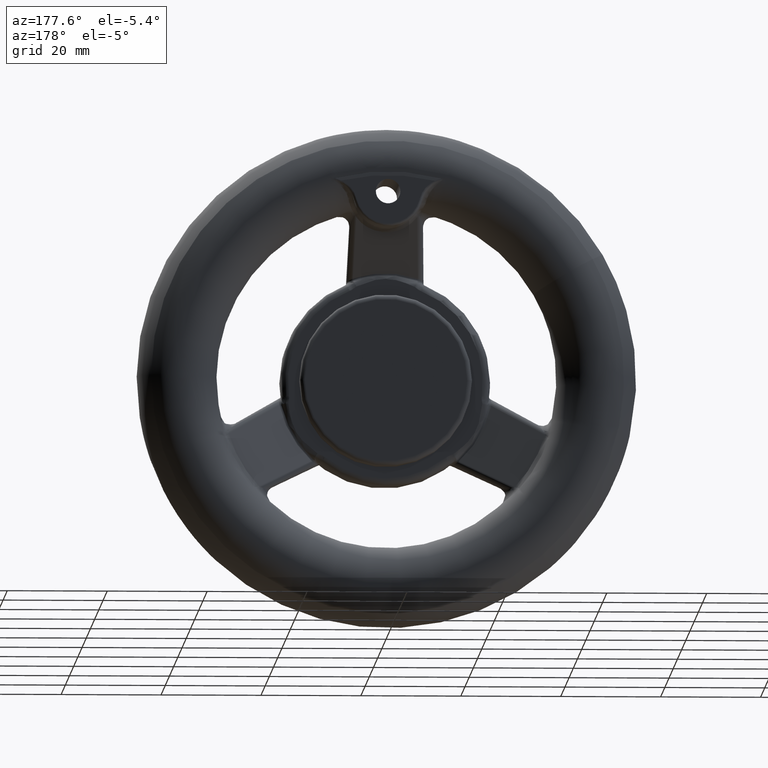
[diagram: clean part render]
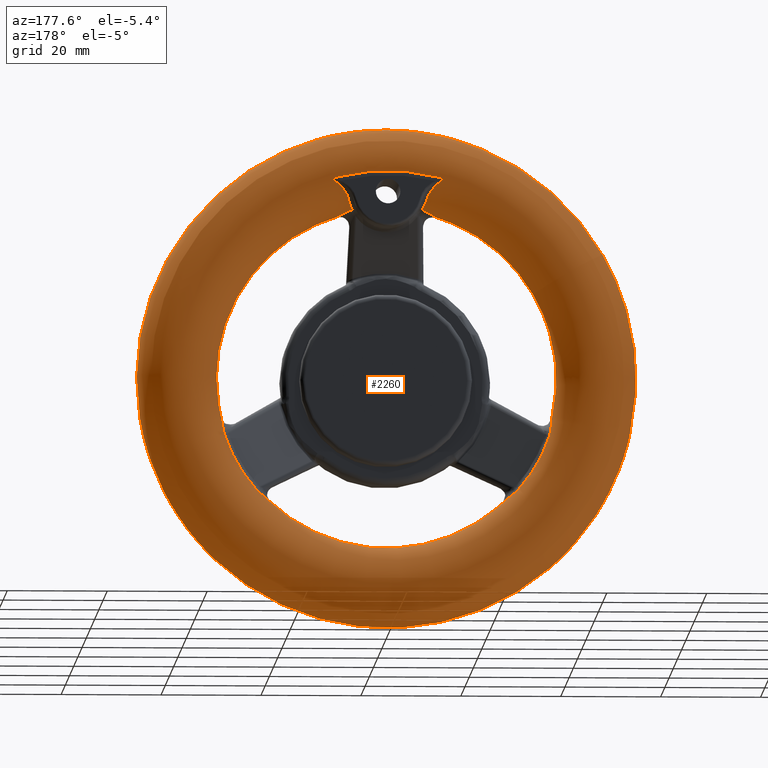
[diagram: same view with one face highlighted and labeled with its STEP entity id]
A machine part, auxiliary view. The second image highlights one B-rep face of the part: STEP entity #2260.
In plain terms, the highlighted toroidal blend (fillet) surface has major radius 42 mm and minor (blend) radius 8 mm.
Its self-contained STEP definition (entity closure, byte-faithful):
#108=B_SPLINE_CURVE_WITH_KNOTS('',3,(#3129,#3130,#3131,#3132),
 .UNSPECIFIED.,.F.,.F.,(4,4),(-1.11205868936124,0.00017987781664673),
 .UNSPECIFIED.);
#109=B_SPLINE_CURVE_WITH_KNOTS('',3,(#3133,#3134,#3135,#3136,#3137),
 .UNSPECIFIED.,.F.,.F.,(4,1,4),(0.00017987781664755,0.155557755867648,1.10627008978932),
 .UNSPECIFIED.);
#111=B_SPLINE_CURVE_WITH_KNOTS('',3,(#3161,#3162,#3163,#3164),
 .UNSPECIFIED.,.F.,.F.,(4,4),(-0.105075459467878,1.49404282551536E-14),
 .UNSPECIFIED.);
#112=B_SPLINE_CURVE_WITH_KNOTS('',3,(#3184,#3185,#3186,#3187),
 .UNSPECIFIED.,.F.,.F.,(4,4),(-0.105075458925029,0.),.UNSPECIFIED.);
#114=B_SPLINE_CURVE_WITH_KNOTS('',3,(#3241,#3242,#3243,#3244,#3245,#3246,
#3247,#3248,#3249,#3250,#3251,#3252),.UNSPECIFIED.,.F.,.F.,(4,1,1,1,1,1,
1,2,4),(-0.0294999964120699,-0.0280249965914664,-0.0265499967708629,-0.0235999971296559,
-0.0176999978472419,-0.0117999985648279,-0.00589999928241397,0.,0.000208481668944702),
 .UNSPECIFIED.);
#117=B_SPLINE_CURVE_WITH_KNOTS('',3,(#3346,#3347,#3348,#3349,#3350,#3351,
#3352,#3353,#3354,#3355,#3356,#3357),.UNSPECIFIED.,.F.,.F.,(4,2,1,1,1,1,
1,1,4),(-0.0297084823095931,-0.0294997530309695,-0.0235998024247756,-0.0176998518185817,
-0.0117999012123878,-0.00589995060619389,-0.00294997530309695,-0.00147498765154847,
0.),.UNSPECIFIED.);
#118=B_SPLINE_CURVE_WITH_KNOTS('',3,(#3382,#3383,#3384,#3385),
 .UNSPECIFIED.,.F.,.F.,(4,4),(-0.324867389448203,0.),.UNSPECIFIED.);
#121=B_SPLINE_CURVE_WITH_KNOTS('',3,(#3419,#3420,#3421,#3422),
 .UNSPECIFIED.,.F.,.F.,(4,4),(1.98314389351417E-16,0.145723780548421),
 .UNSPECIFIED.);
#123=B_SPLINE_CURVE_WITH_KNOTS('',3,(#3465,#3466,#3467,#3468,#3469,#3470,
#3471,#3472,#3473,#3474,#3475,#3476,#3477),.UNSPECIFIED.,.F.,.F.,(4,3,3,
3,4),(9.00101148506978,9.11299112772168,9.22497077037362,9.37427696057621,
9.52358315077266),.UNSPECIFIED.);
#125=B_SPLINE_CURVE_WITH_KNOTS('',3,(#3567,#3568,#3569,#3570,#3571,#3572,
#3573),.UNSPECIFIED.,.F.,.F.,(4,1,1,1,4),(-5.02304972807081,-4.87374523368268,
-4.72444073929455,-4.61246236850345,-4.50048399771234),.UNSPECIFIED.);
#127=B_SPLINE_CURVE_WITH_KNOTS('',3,(#3601,#3602,#3603,#3604),
 .UNSPECIFIED.,.F.,.F.,(4,4),(0.,0.145723772805698),.UNSPECIFIED.);
#128=B_SPLINE_CURVE_WITH_KNOTS('',3,(#3626,#3627,#3628,#3629),
 .UNSPECIFIED.,.F.,.F.,(4,4),(-0.324867389448202,0.),.UNSPECIFIED.);
#139=B_SPLINE_CURVE_WITH_KNOTS('',3,(#3868,#3869,#3870,#3871,#3872,#3873,
#3874,#3875,#3876),.UNSPECIFIED.,.F.,.F.,(4,1,1,1,1,1,4),(0.,0.0711721336624234,
0.142344267324847,0.177930334156058,0.21351640098727,0.355860668312117,
0.433416791087319),.UNSPECIFIED.);
#143=B_SPLINE_CURVE_WITH_KNOTS('',3,(#3952,#3953,#3954,#3955,#3956,#3957,
#3958),.UNSPECIFIED.,.F.,.F.,(4,1,1,1,4),(-0.433445344498483,-0.284688534649692,
-0.142344267324846,-0.071172133662423,0.),.UNSPECIFIED.);
#144=B_SPLINE_CURVE_WITH_KNOTS('',3,(#3962,#3963,#3964,#3965),
 .UNSPECIFIED.,.F.,.F.,(4,4),(-0.0641044802641502,0.),.UNSPECIFIED.);
#145=B_SPLINE_CURVE_WITH_KNOTS('',3,(#3967,#3968,#3969,#3970,#3971,#3972),
 .UNSPECIFIED.,.F.,.F.,(4,1,1,4),(0.,0.215920061076048,0.359866768460079,
0.503813475844111),.UNSPECIFIED.);
#146=B_SPLINE_CURVE_WITH_KNOTS('',3,(#3974,#3975,#3976,#3977),
 .UNSPECIFIED.,.F.,.F.,(4,4),(0.0581776192523774,0.125153708505333),
 .UNSPECIFIED.);
#147=B_SPLINE_CURVE_WITH_KNOTS('',3,(#3979,#3980,#3981,#3982),
 .UNSPECIFIED.,.F.,.F.,(4,4),(-0.44700126802991,0.),.UNSPECIFIED.);
#148=B_SPLINE_CURVE_WITH_KNOTS('',3,(#3984,#3985,#3986,#3987),
 .UNSPECIFIED.,.F.,.F.,(4,4),(-0.14572378054842,-4.2530484477613E-16),
 .UNSPECIFIED.);
#149=B_SPLINE_CURVE_WITH_KNOTS('',3,(#3989,#3990,#3991,#3992),
 .UNSPECIFIED.,.F.,.F.,(4,4),(-0.204546374153494,-6.9838081301515E-13),
 .UNSPECIFIED.);
#150=B_SPLINE_CURVE_WITH_KNOTS('',3,(#3994,#3995,#3996,#3997),
 .UNSPECIFIED.,.F.,.F.,(4,4),(0.,0.0843575794704116),.UNSPECIFIED.);
#151=B_SPLINE_CURVE_WITH_KNOTS('',3,(#3999,#4000,#4001,#4002,#4003,#4004,
#4005,#4006,#4007),.UNSPECIFIED.,.F.,.F.,(4,1,1,1,1,1,4),(0.,0.0314384252032729,
0.0471576378049094,0.0628768504065459,0.0943152756098188,0.157192126016365,
0.220068976422911),.UNSPECIFIED.);
#152=B_SPLINE_CURVE_WITH_KNOTS('',3,(#4011,#4012,#4013,#4014,#4015,#4016,
#4017,#4018,#4019,#4020,#4021,#4022),.UNSPECIFIED.,.F.,.F.,(4,1,1,1,1,1,
1,1,1,4),(0.,0.0628462693935953,0.094269404090393,0.125692538787191,0.14140410613559,
0.149259889809789,0.157115673483988,0.188538808180786,0.196394591854985,
0.219961942877584),.UNSPECIFIED.);
#153=B_SPLINE_CURVE_WITH_KNOTS('',3,(#4024,#4025,#4026,#4027),
 .UNSPECIFIED.,.F.,.F.,(4,4),(0.,0.0843575794555558),.UNSPECIFIED.);
#154=B_SPLINE_CURVE_WITH_KNOTS('',3,(#4029,#4030,#4031,#4032),
 .UNSPECIFIED.,.F.,.F.,(4,4),(-0.204546374167653,0.),.UNSPECIFIED.);
#155=B_SPLINE_CURVE_WITH_KNOTS('',3,(#4034,#4035,#4036,#4037),
 .UNSPECIFIED.,.F.,.F.,(4,4),(-0.14572378054836,0.),.UNSPECIFIED.);
#156=B_SPLINE_CURVE_WITH_KNOTS('',3,(#4039,#4040,#4041,#4042),
 .UNSPECIFIED.,.F.,.F.,(4,4),(-0.447001268029909,0.),.UNSPECIFIED.);
#157=B_SPLINE_CURVE_WITH_KNOTS('',3,(#4044,#4045,#4046,#4047),
 .UNSPECIFIED.,.F.,.F.,(4,4),(-0.125153708505299,-0.0581776192523448),
 .UNSPECIFIED.);
#158=B_SPLINE_CURVE_WITH_KNOTS('',3,(#4049,#4050,#4051,#4052,#4053,#4054,
#4055),.UNSPECIFIED.,.F.,.F.,(4,1,1,1,4),(-0.503813475829456,-0.395853445294572,
-0.287893414759689,-0.143946707379844,0.),.UNSPECIFIED.);
#159=B_SPLINE_CURVE_WITH_KNOTS('',3,(#4056,#4057,#4058,#4059),
 .UNSPECIFIED.,.F.,.F.,(4,4),(-0.0641044802641506,0.),.UNSPECIFIED.);
#160=B_SPLINE_CURVE_WITH_KNOTS('',3,(#4062,#4063,#4064,#4065,#4066,#4067),
 .UNSPECIFIED.,.F.,.F.,(4,2,4),(-0.0575729696720196,-0.0573695342148564,
0.),.UNSPECIFIED.);
#161=B_SPLINE_CURVE_WITH_KNOTS('',3,(#4069,#4070,#4071,#4072,#4073),
 .UNSPECIFIED.,.F.,.F.,(4,1,4),(-25.5208932710669,-24.874945102526,-24.4048725772288),
 .UNSPECIFIED.);
#162=B_SPLINE_CURVE_WITH_KNOTS('',3,(#4075,#4076,#4077,#4078,#4079,#4080),
 .UNSPECIFIED.,.F.,.F.,(4,2,4),(-0.057369534214831,0.,0.000203435457162376),
 .UNSPECIFIED.);
#163=B_SPLINE_CURVE_WITH_KNOTS('',3,(#4082,#4083,#4084,#4085),
 .UNSPECIFIED.,.F.,.F.,(4,4),(-0.12515371088495,0.),.UNSPECIFIED.);
#164=B_SPLINE_CURVE_WITH_KNOTS('',3,(#4087,#4088,#4089,#4090,#4091,#4092,
#4093),.UNSPECIFIED.,.F.,.F.,(4,1,1,1,4),(0.,0.107961096055346,0.215922192110692,
0.359870320184487,0.503818448258281),.UNSPECIFIED.);
#165=B_SPLINE_CURVE_WITH_KNOTS('',3,(#4095,#4096,#4097,#4098),
 .UNSPECIFIED.,.F.,.F.,(4,4),(-0.0641044802641587,0.),.UNSPECIFIED.);
#166=B_SPLINE_CURVE_WITH_KNOTS('',3,(#4100,#4101,#4102,#4103,#4104,#4105,
#4106,#4107),.UNSPECIFIED.,.F.,.F.,(4,1,1,1,1,4),(1.61313782085167E-15,
0.144149460067288,0.288298920134573,0.360373650168216,0.432448380201859,
0.504523110235502),.UNSPECIFIED.);
#167=B_SPLINE_CURVE_WITH_KNOTS('',3,(#4109,#4110,#4111,#4112,#4113,#4114,
#4115),.UNSPECIFIED.,.F.,.F.,(4,1,1,1,4),(-0.0641984082538768,-0.050441606485189,
-0.0458560058956263,-0.0366848047165011,0.),.UNSPECIFIED.);
#168=B_SPLINE_CURVE_WITH_KNOTS('',3,(#4117,#4118,#4119,#4120),
 .UNSPECIFIED.,.F.,.F.,(4,4),(-20.0694060049189,-18.9580455345997),
 .UNSPECIFIED.);
#169=B_SPLINE_CURVE_WITH_KNOTS('',3,(#4122,#4123,#4124,#4125,#4126,#4127,
#4128,#4129,#4130,#4131,#4132,#4133,#4134,#4135,#4136,#4137,#4138,#4139,
#4140,#4141,#4142,#4143),.UNSPECIFIED.,.F.,.F.,(4,1,1,1,1,1,1,1,1,1,1,1,
1,1,1,1,1,1,1,4),(-0.0641885585997634,-0.0458461530957626,-0.0412605517197624,
-0.0366749503437622,-0.0275037475917619,-0.0244466800077617,-0.0183325448397615,
-0.0122184096717612,-0.00916134208776105,-0.008014941743761,-0.00686854139976095,
-0.00457574071176085,-0.00228294002376075,-0.00170973985176073,-0.0011365396797607,
-0.000563339507760679,-0.000276739421760667,-0.000133439378760661,-6.17893572606576E-5,
9.86066423934549E-6),.UNSPECIFIED.);
#170=B_SPLINE_CURVE_WITH_KNOTS('',3,(#4145,#4146,#4147,#4148,#4149,#4150,
#4151,#4152),.UNSPECIFIED.,.F.,.F.,(4,1,1,1,1,4),(0.,0.0720749658790205,
0.144149931758041,0.216224897637062,0.360374829395103,0.504524761153144),
 .UNSPECIFIED.);
#171=B_SPLINE_CURVE_WITH_KNOTS('',3,(#4154,#4155,#4156,#4157),
 .UNSPECIFIED.,.F.,.F.,(4,4),(-0.0641044802641476,0.),.UNSPECIFIED.);
#172=B_SPLINE_CURVE_WITH_KNOTS('',3,(#4159,#4160,#4161,#4162,#4163,#4164),
 .UNSPECIFIED.,.F.,.F.,(4,1,1,4),(0.,0.215919860424791,0.359866434041318,
0.503813007657846),.UNSPECIFIED.);
#173=B_SPLINE_CURVE_WITH_KNOTS('',3,(#4165,#4166,#4167,#4168),
 .UNSPECIFIED.,.F.,.F.,(4,4),(0.,0.125153708205909),.UNSPECIFIED.);
#174=B_SPLINE_CURVE_WITH_KNOTS('',3,(#4171,#4172,#4173,#4174,#4175,#4176),
 .UNSPECIFIED.,.F.,.F.,(4,2,4),(-0.0573695342148252,0.,0.000203435457164769),
 .UNSPECIFIED.);
#175=B_SPLINE_CURVE_WITH_KNOTS('',3,(#4178,#4179,#4180,#4181),
 .UNSPECIFIED.,.F.,.F.,(4,4),(-0.1251537082065,0.),.UNSPECIFIED.);
#176=B_SPLINE_CURVE_WITH_KNOTS('',3,(#4183,#4184,#4185,#4186,#4187,#4188),
 .UNSPECIFIED.,.F.,.F.,(4,1,1,4),(-0.503813007657846,-0.359866434041319,
-0.215919860424791,0.),.UNSPECIFIED.);
#177=B_SPLINE_CURVE_WITH_KNOTS('',3,(#4190,#4191,#4192,#4193),
 .UNSPECIFIED.,.F.,.F.,(4,4),(-0.0641044802641477,0.),.UNSPECIFIED.);
#178=B_SPLINE_CURVE_WITH_KNOTS('',3,(#4195,#4196,#4197,#4198,#4199,#4200,
#4201,#4202),.UNSPECIFIED.,.F.,.F.,(4,1,1,1,1,4),(-0.504524761157834,-0.360374829398453,
-0.216224897639072,-0.144149931759381,-0.0720749658796906,0.),
 .UNSPECIFIED.);
#179=B_SPLINE_CURVE_WITH_KNOTS('',3,(#4204,#4205,#4206,#4207,#4208,#4209,
#4210),.UNSPECIFIED.,.F.,.F.,(4,1,1,1,4),(-0.0641984082537275,-0.0619056079589515,
-0.0550272070746236,-0.0366848047164157,0.),.UNSPECIFIED.);
#180=B_SPLINE_CURVE_WITH_KNOTS('',3,(#4212,#4213,#4214,#4215),
 .UNSPECIFIED.,.F.,.F.,(4,4),(-20.0694060049189,-18.9580455345997),
 .UNSPECIFIED.);
#181=B_SPLINE_CURVE_WITH_KNOTS('',3,(#4217,#4218,#4219,#4220,#4221,#4222,
#4223,#4224),.UNSPECIFIED.,.F.,.F.,(4,1,1,1,1,4),(-0.0641885586606368,-0.0366749504048936,
-0.0183325449010648,-0.00916134214915041,-0.00686854146117181,9.86060276399343E-6),
 .UNSPECIFIED.);
#182=B_SPLINE_CURVE_WITH_KNOTS('',3,(#4226,#4227,#4228,#4229,#4230,#4231,
#4232,#4233),.UNSPECIFIED.,.F.,.F.,(4,1,1,1,1,4),(0.,0.0720742497162352,
0.14414849943247,0.216222749148706,0.360371248581176,0.504519748013646),
 .UNSPECIFIED.);
#183=B_SPLINE_CURVE_WITH_KNOTS('',3,(#4235,#4236,#4237,#4238),
 .UNSPECIFIED.,.F.,.F.,(4,4),(-0.0641044802641576,0.),.UNSPECIFIED.);
#184=B_SPLINE_CURVE_WITH_KNOTS('',3,(#4240,#4241,#4242,#4243,#4244,#4245),
 .UNSPECIFIED.,.F.,.F.,(4,1,1,4),(0.,0.215920768120389,0.359867946867315,
0.503815125614241),.UNSPECIFIED.);
#185=B_SPLINE_CURVE_WITH_KNOTS('',3,(#4247,#4248,#4249,#4250),
 .UNSPECIFIED.,.F.,.F.,(4,4),(0.,0.125153710884984),.UNSPECIFIED.);
#186=B_SPLINE_CURVE_WITH_KNOTS('',3,(#4252,#4253,#4254,#4255,#4256,#4257),
 .UNSPECIFIED.,.F.,.F.,(4,2,4),(-0.057572969671972,-0.0573695342148082,
0.),.UNSPECIFIED.);
#187=B_SPLINE_CURVE_WITH_KNOTS('',3,(#4258,#4259,#4260,#4261,#4262),
 .UNSPECIFIED.,.F.,.F.,(4,1,4),(-25.5208932710649,-24.874945102526,-24.4048725772297),
 .UNSPECIFIED.);
#397=TOROIDAL_SURFACE('',#2432,42.,8.);
#418=FACE_BOUND('',#649,.T.);
#419=FACE_BOUND('',#650,.T.);
#420=FACE_BOUND('',#651,.T.);
#649=EDGE_LOOP('',(#1601,#1602,#1603,#1604,#1605,#1606,#1607,#1608,#1609,
#1610,#1611,#1612,#1613,#1614,#1615,#1616,#1617,#1618,#1619,#1620,#1621,
#1622,#1623,#1624,#1625,#1626,#1627,#1628,#1629,#1630,#1631));
#650=EDGE_LOOP('',(#1632,#1633,#1634,#1635,#1636,#1637,#1638,#1639,#1640,
#1641,#1642,#1643,#1644,#1645));
#651=EDGE_LOOP('',(#1646,#1647,#1648,#1649,#1650,#1651,#1652,#1653,#1654,
#1655,#1656,#1657,#1658,#1659));
#817=CIRCLE('',#2433,41.1239585600274);
#936=VERTEX_POINT('',#3121);
#939=VERTEX_POINT('',#3126);
#940=VERTEX_POINT('',#3128);
#941=VERTEX_POINT('',#3154);
#944=VERTEX_POINT('',#3182);
#945=VERTEX_POINT('',#3240);
#946=VERTEX_POINT('',#3323);
#948=VERTEX_POINT('',#3379);
#949=VERTEX_POINT('',#3381);
#951=VERTEX_POINT('',#3412);
#957=VERTEX_POINT('',#3557);
#959=VERTEX_POINT('',#3594);
#961=VERTEX_POINT('',#3625);
#968=VERTEX_POINT('',#3866);
#974=VERTEX_POINT('',#3951);
#975=VERTEX_POINT('',#3961);
#976=VERTEX_POINT('',#3966);
#977=VERTEX_POINT('',#3973);
#978=VERTEX_POINT('',#3978);
#979=VERTEX_POINT('',#3983);
#980=VERTEX_POINT('',#3988);
#981=VERTEX_POINT('',#3993);
#982=VERTEX_POINT('',#3998);
#983=VERTEX_POINT('',#4008);
#984=VERTEX_POINT('',#4010);
#985=VERTEX_POINT('',#4023);
#986=VERTEX_POINT('',#4028);
#987=VERTEX_POINT('',#4033);
#988=VERTEX_POINT('',#4038);
#989=VERTEX_POINT('',#4043);
#990=VERTEX_POINT('',#4048);
#991=VERTEX_POINT('',#4060);
#992=VERTEX_POINT('',#4061);
#993=VERTEX_POINT('',#4068);
#994=VERTEX_POINT('',#4074);
#995=VERTEX_POINT('',#4081);
#996=VERTEX_POINT('',#4086);
#997=VERTEX_POINT('',#4094);
#998=VERTEX_POINT('',#4099);
#999=VERTEX_POINT('',#4108);
#1000=VERTEX_POINT('',#4116);
#1001=VERTEX_POINT('',#4121);
#1002=VERTEX_POINT('',#4144);
#1003=VERTEX_POINT('',#4153);
#1004=VERTEX_POINT('',#4158);
#1005=VERTEX_POINT('',#4169);
#1006=VERTEX_POINT('',#4170);
#1007=VERTEX_POINT('',#4177);
#1008=VERTEX_POINT('',#4182);
#1009=VERTEX_POINT('',#4189);
#1010=VERTEX_POINT('',#4194);
#1011=VERTEX_POINT('',#4203);
#1012=VERTEX_POINT('',#4211);
#1013=VERTEX_POINT('',#4216);
#1014=VERTEX_POINT('',#4225);
#1015=VERTEX_POINT('',#4234);
#1016=VERTEX_POINT('',#4239);
#1017=VERTEX_POINT('',#4246);
#1018=VERTEX_POINT('',#4251);
#1152=EDGE_CURVE('',#939,#940,#108,.T.);
#1153=EDGE_CURVE('',#940,#936,#109,.T.);
#1156=EDGE_CURVE('',#936,#941,#111,.T.);
#1158=EDGE_CURVE('',#944,#939,#112,.T.);
#1160=EDGE_CURVE('',#941,#945,#114,.T.);
#1163=EDGE_CURVE('',#946,#944,#117,.T.);
#1165=EDGE_CURVE('',#948,#949,#118,.T.);
#1170=EDGE_CURVE('',#949,#951,#121,.T.);
#1172=EDGE_CURVE('',#951,#946,#123,.T.);
#1179=EDGE_CURVE('',#945,#957,#125,.T.);
#1182=EDGE_CURVE('',#957,#959,#127,.T.);
#1183=EDGE_CURVE('',#959,#961,#128,.T.);
#1198=EDGE_CURVE('',#968,#948,#139,.T.);
#1207=EDGE_CURVE('',#961,#974,#143,.T.);
#1209=EDGE_CURVE('',#975,#968,#144,.T.);
#1210=EDGE_CURVE('',#976,#975,#145,.T.);
#1211=EDGE_CURVE('',#977,#976,#146,.T.);
#1212=EDGE_CURVE('',#978,#977,#147,.T.);
#1213=EDGE_CURVE('',#979,#978,#148,.T.);
#1214=EDGE_CURVE('',#980,#979,#149,.T.);
#1215=EDGE_CURVE('',#981,#980,#150,.T.);
#1216=EDGE_CURVE('',#982,#981,#151,.T.);
#1217=EDGE_CURVE('',#983,#982,#817,.T.);
#1218=EDGE_CURVE('',#984,#983,#152,.T.);
#1219=EDGE_CURVE('',#985,#984,#153,.T.);
#1220=EDGE_CURVE('',#986,#985,#154,.T.);
#1221=EDGE_CURVE('',#987,#986,#155,.T.);
#1222=EDGE_CURVE('',#988,#987,#156,.T.);
#1223=EDGE_CURVE('',#989,#988,#157,.T.);
#1224=EDGE_CURVE('',#990,#989,#158,.T.);
#1225=EDGE_CURVE('',#974,#990,#159,.T.);
#1226=EDGE_CURVE('',#991,#992,#160,.T.);
#1227=EDGE_CURVE('',#993,#991,#161,.T.);
#1228=EDGE_CURVE('',#994,#993,#162,.T.);
#1229=EDGE_CURVE('',#995,#994,#163,.T.);
#1230=EDGE_CURVE('',#996,#995,#164,.T.);
#1231=EDGE_CURVE('',#997,#996,#165,.T.);
#1232=EDGE_CURVE('',#998,#997,#166,.T.);
#1233=EDGE_CURVE('',#999,#998,#167,.T.);
#1234=EDGE_CURVE('',#1000,#999,#168,.T.);
#1235=EDGE_CURVE('',#1001,#1000,#169,.T.);
#1236=EDGE_CURVE('',#1002,#1001,#170,.T.);
#1237=EDGE_CURVE('',#1003,#1002,#171,.T.);
#1238=EDGE_CURVE('',#1004,#1003,#172,.T.);
#1239=EDGE_CURVE('',#992,#1004,#173,.T.);
#1240=EDGE_CURVE('',#1005,#1006,#174,.T.);
#1241=EDGE_CURVE('',#1007,#1005,#175,.T.);
#1242=EDGE_CURVE('',#1008,#1007,#176,.T.);
#1243=EDGE_CURVE('',#1009,#1008,#177,.T.);
#1244=EDGE_CURVE('',#1010,#1009,#178,.T.);
#1245=EDGE_CURVE('',#1011,#1010,#179,.T.);
#1246=EDGE_CURVE('',#1012,#1011,#180,.T.);
#1247=EDGE_CURVE('',#1013,#1012,#181,.T.);
#1248=EDGE_CURVE('',#1014,#1013,#182,.T.);
#1249=EDGE_CURVE('',#1015,#1014,#183,.T.);
#1250=EDGE_CURVE('',#1016,#1015,#184,.T.);
#1251=EDGE_CURVE('',#1017,#1016,#185,.T.);
#1252=EDGE_CURVE('',#1018,#1017,#186,.T.);
#1253=EDGE_CURVE('',#1006,#1018,#187,.T.);
#1601=ORIENTED_EDGE('',*,*,#1163,.F.);
#1602=ORIENTED_EDGE('',*,*,#1172,.F.);
#1603=ORIENTED_EDGE('',*,*,#1170,.F.);
#1604=ORIENTED_EDGE('',*,*,#1165,.F.);
#1605=ORIENTED_EDGE('',*,*,#1198,.F.);
#1606=ORIENTED_EDGE('',*,*,#1209,.F.);
#1607=ORIENTED_EDGE('',*,*,#1210,.F.);
#1608=ORIENTED_EDGE('',*,*,#1211,.F.);
#1609=ORIENTED_EDGE('',*,*,#1212,.F.);
#1610=ORIENTED_EDGE('',*,*,#1213,.F.);
#1611=ORIENTED_EDGE('',*,*,#1214,.F.);
#1612=ORIENTED_EDGE('',*,*,#1215,.F.);
#1613=ORIENTED_EDGE('',*,*,#1216,.F.);
#1614=ORIENTED_EDGE('',*,*,#1217,.F.);
#1615=ORIENTED_EDGE('',*,*,#1218,.F.);
#1616=ORIENTED_EDGE('',*,*,#1219,.F.);
#1617=ORIENTED_EDGE('',*,*,#1220,.F.);
#1618=ORIENTED_EDGE('',*,*,#1221,.F.);
#1619=ORIENTED_EDGE('',*,*,#1222,.F.);
#1620=ORIENTED_EDGE('',*,*,#1223,.F.);
#1621=ORIENTED_EDGE('',*,*,#1224,.F.);
#1622=ORIENTED_EDGE('',*,*,#1225,.F.);
#1623=ORIENTED_EDGE('',*,*,#1207,.F.);
#1624=ORIENTED_EDGE('',*,*,#1183,.F.);
#1625=ORIENTED_EDGE('',*,*,#1182,.F.);
#1626=ORIENTED_EDGE('',*,*,#1179,.F.);
#1627=ORIENTED_EDGE('',*,*,#1160,.F.);
#1628=ORIENTED_EDGE('',*,*,#1156,.F.);
#1629=ORIENTED_EDGE('',*,*,#1153,.F.);
#1630=ORIENTED_EDGE('',*,*,#1152,.F.);
#1631=ORIENTED_EDGE('',*,*,#1158,.F.);
#1632=ORIENTED_EDGE('',*,*,#1226,.F.);
#1633=ORIENTED_EDGE('',*,*,#1227,.F.);
#1634=ORIENTED_EDGE('',*,*,#1228,.F.);
#1635=ORIENTED_EDGE('',*,*,#1229,.F.);
#1636=ORIENTED_EDGE('',*,*,#1230,.F.);
#1637=ORIENTED_EDGE('',*,*,#1231,.F.);
#1638=ORIENTED_EDGE('',*,*,#1232,.F.);
#1639=ORIENTED_EDGE('',*,*,#1233,.F.);
#1640=ORIENTED_EDGE('',*,*,#1234,.F.);
#1641=ORIENTED_EDGE('',*,*,#1235,.F.);
#1642=ORIENTED_EDGE('',*,*,#1236,.F.);
#1643=ORIENTED_EDGE('',*,*,#1237,.F.);
#1644=ORIENTED_EDGE('',*,*,#1238,.F.);
#1645=ORIENTED_EDGE('',*,*,#1239,.F.);
#1646=ORIENTED_EDGE('',*,*,#1240,.F.);
#1647=ORIENTED_EDGE('',*,*,#1241,.F.);
#1648=ORIENTED_EDGE('',*,*,#1242,.F.);
#1649=ORIENTED_EDGE('',*,*,#1243,.F.);
#1650=ORIENTED_EDGE('',*,*,#1244,.F.);
#1651=ORIENTED_EDGE('',*,*,#1245,.F.);
#1652=ORIENTED_EDGE('',*,*,#1246,.F.);
#1653=ORIENTED_EDGE('',*,*,#1247,.F.);
#1654=ORIENTED_EDGE('',*,*,#1248,.F.);
#1655=ORIENTED_EDGE('',*,*,#1249,.F.);
#1656=ORIENTED_EDGE('',*,*,#1250,.F.);
#1657=ORIENTED_EDGE('',*,*,#1251,.F.);
#1658=ORIENTED_EDGE('',*,*,#1252,.F.);
#1659=ORIENTED_EDGE('',*,*,#1253,.F.);
#2260=ADVANCED_FACE('',(#418,#419,#420),#397,.T.);
#2432=AXIS2_PLACEMENT_3D('',#3960,#2688,#2689);
#2433=AXIS2_PLACEMENT_3D('',#4009,#2690,#2691);
#2688=DIRECTION('center_axis',(0.,1.,0.));
#2689=DIRECTION('ref_axis',(0.,0.,1.));
#2690=DIRECTION('center_axis',(0.,1.,0.));
#2691=DIRECTION('ref_axis',(-1.62471662140267E-16,0.,1.));
#3121=CARTESIAN_POINT('',(-11.054794354252,-5.98570922037629,40.0233820607429));
#3126=CARTESIAN_POINT('',(11.054794354252,-5.98570922037629,40.0233820607429));
#3128=CARTESIAN_POINT('',(3.12210147871122E-14,-5.98570922037629,41.5220373993739));
#3129=CARTESIAN_POINT('Ctrl Pts',(11.054794354252,-5.98570922037629,40.0233820607429));
#3130=CARTESIAN_POINT('Ctrl Pts',(7.45814404245277,-5.98570922037629,41.0168070916599));
#3131=CARTESIAN_POINT('Ctrl Pts',(3.73740943256129,-5.98570922037629,41.5226293672828));
#3132=CARTESIAN_POINT('Ctrl Pts',(-7.81405495864362E-11,-5.98570922037629,
41.522264189446));
#3133=CARTESIAN_POINT('Ctrl Pts',(-7.81498477042675E-11,-5.98570922037629,
41.522264189446));
#3134=CARTESIAN_POINT('Ctrl Pts',(-0.522109882065755,-5.98570922037629,
41.5222131747095));
#3135=CARTESIAN_POINT('Ctrl Pts',(-4.24117581806594,-5.98570922037629,41.4515273682912));
#3136=CARTESIAN_POINT('Ctrl Pts',(-7.96189324068181,-5.98570922037629,40.8776673312047));
#3137=CARTESIAN_POINT('Ctrl Pts',(-11.054794354252,-5.98570922037629,40.0233820607429));
#3154=CARTESIAN_POINT('',(-11.8040982586702,-5.95673671440128,39.4405975153765));
#3161=CARTESIAN_POINT('Ctrl Pts',(-11.054794354252,-5.98570922037629,40.0233820607429));
#3162=CARTESIAN_POINT('Ctrl Pts',(-11.3938679143902,-5.98570922037628,39.9297270949381));
#3163=CARTESIAN_POINT('Ctrl Pts',(-11.7292097653912,-5.98078498171343,39.7034000918977));
#3164=CARTESIAN_POINT('Ctrl Pts',(-11.8040982586702,-5.95673671440127,39.4405975153764));
#3182=CARTESIAN_POINT('',(11.8040982586702,-5.95673671440129,39.4405975153765));
#3184=CARTESIAN_POINT('Ctrl Pts',(11.8040982586702,-5.95673671440128,39.4405975153765));
#3185=CARTESIAN_POINT('Ctrl Pts',(11.7292097657782,-5.98078498158912,39.7034000905393));
#3186=CARTESIAN_POINT('Ctrl Pts',(11.3938679126385,-5.98570922037628,39.9297270954219));
#3187=CARTESIAN_POINT('Ctrl Pts',(11.054794354252,-5.98570922037629,40.0233820607429));
#3240=CARTESIAN_POINT('',(-11.9303932519007,-5.93725393319014,39.2258297152863));
#3241=CARTESIAN_POINT('Ctrl Pts',(-11.8040982586702,-5.95673671440128,39.4405975153765));
#3242=CARTESIAN_POINT('Ctrl Pts',(-11.8051495080743,-5.95639913614894,39.4369084165594));
#3243=CARTESIAN_POINT('Ctrl Pts',(-11.807677079618,-5.95573419810031,39.429544180922));
#3244=CARTESIAN_POINT('Ctrl Pts',(-11.8133973470783,-5.9544161644559,39.4148793099553));
#3245=CARTESIAN_POINT('Ctrl Pts',(-11.8248130809754,-5.95212781459619,39.3893375348989));
#3246=CARTESIAN_POINT('Ctrl Pts',(-11.8438639967729,-5.94888178989594,39.3532057785797));
#3247=CARTESIAN_POINT('Ctrl Pts',(-11.8697687763787,-5.94502225464461,39.3105881579497));
#3248=CARTESIAN_POINT('Ctrl Pts',(-11.8982678352397,-5.94118306990689,39.2685343186556));
#3249=CARTESIAN_POINT('Ctrl Pts',(-11.9187271718612,-5.93864739172649,39.2409497110284));
#3250=CARTESIAN_POINT('Ctrl Pts',(-11.9296467065352,-5.93734294671039,39.2267954420061));
#3251=CARTESIAN_POINT('Ctrl Pts',(-11.9300197697475,-5.93729843584731,39.2263125138303));
#3252=CARTESIAN_POINT('Ctrl Pts',(-11.9303932519831,-5.93725393319378,39.2258297152914));
#3323=CARTESIAN_POINT('',(11.9303932519228,-5.93725393319112,39.2258297152876));
#3346=CARTESIAN_POINT('Ctrl Pts',(11.9303932519831,-5.93725393319378,39.2258297152914));
#3347=CARTESIAN_POINT('Ctrl Pts',(11.9300193261823,-5.93729848870059,39.2263130872232));
#3348=CARTESIAN_POINT('Ctrl Pts',(11.9296458215004,-5.93734305238459,39.2267965882934));
#3349=CARTESIAN_POINT('Ctrl Pts',(11.9187259135199,-5.93864754148235,39.2409513503263));
#3350=CARTESIAN_POINT('Ctrl Pts',(11.8982679941093,-5.94118292659262,39.2685328026104));
#3351=CARTESIAN_POINT('Ctrl Pts',(11.8697672051636,-5.94502241520218,39.3105900818501));
#3352=CARTESIAN_POINT('Ctrl Pts',(11.8438644420057,-5.94888173246624,39.3532051179261));
#3353=CARTESIAN_POINT('Ctrl Pts',(11.8248149861788,-5.95212808928281,39.3893396195851));
#3354=CARTESIAN_POINT('Ctrl Pts',(11.8133984007864,-5.95441620442101,39.4148793995813));
#3355=CARTESIAN_POINT('Ctrl Pts',(11.8076807152128,-5.95573434846762,39.4295445966913));
#3356=CARTESIAN_POINT('Ctrl Pts',(11.8051494994012,-5.95639913893403,39.4369084469953));
#3357=CARTESIAN_POINT('Ctrl Pts',(11.8040982586702,-5.95673671440128,39.4405975153765));
#3379=CARTESIAN_POINT('',(7.23566926346403,-1.59345688751037,34.0931126237461));
#3381=CARTESIAN_POINT('',(7.90410203389315,-3.87668874110695,35.7075242777061));
#3382=CARTESIAN_POINT('Ctrl Pts',(7.23566926346406,-1.59345688751037,34.0931126237461));
#3383=CARTESIAN_POINT('Ctrl Pts',(7.46555119663793,-2.44620498897165,34.4825971952469));
#3384=CARTESIAN_POINT('Ctrl Pts',(7.72834614220084,-3.22371854430801,35.022386977489));
#3385=CARTESIAN_POINT('Ctrl Pts',(7.90410203389315,-3.87668874110695,35.7075242777061));
#3412=CARTESIAN_POINT('',(8.317351310245,-4.66666666665708,36.6458080306142));
#3419=CARTESIAN_POINT('Ctrl Pts',(7.90410203389315,-3.87668874110695,35.7075242777061));
#3420=CARTESIAN_POINT('Ctrl Pts',(7.98293978068752,-4.16958759384998,36.0148521315482));
#3421=CARTESIAN_POINT('Ctrl Pts',(8.11574045688793,-4.43616225544709,36.3352303088481));
#3422=CARTESIAN_POINT('Ctrl Pts',(8.317351310245,-4.66666666665708,36.6458080306142));
#3465=CARTESIAN_POINT('Ctrl Pts',(8.31735131024541,-4.6666666666576,36.6458080306149));
#3466=CARTESIAN_POINT('Ctrl Pts',(8.47227668501078,-4.84379493975123,36.8844676520446));
#3467=CARTESIAN_POINT('Ctrl Pts',(8.63198373495851,-5.00455930550032,37.1326997568992));
#3468=CARTESIAN_POINT('Ctrl Pts',(8.8142577095344,-5.14587874599911,37.3780728332514));
#3469=CARTESIAN_POINT('Ctrl Pts',(8.99653168411036,-5.28719818649795,37.6234459096036));
#3470=CARTESIAN_POINT('Ctrl Pts',(9.20137258331449,-5.40907270174648,37.8659599574536));
#3471=CARTESIAN_POINT('Ctrl Pts',(9.43760645472601,-5.51023376137171,38.0916406622964));
#3472=CARTESIAN_POINT('Ctrl Pts',(9.75258494994138,-5.64511517420536,38.3925482687536));
#3473=CARTESIAN_POINT('Ctrl Pts',(10.1233731735254,-5.74317266593091,38.6635299320871));
#3474=CARTESIAN_POINT('Ctrl Pts',(10.5454321657837,-5.81080851782753,38.8642855790135));
#3475=CARTESIAN_POINT('Ctrl Pts',(10.9674911580246,-5.87844436972136,39.0650412259317));
#3476=CARTESIAN_POINT('Ctrl Pts',(11.4408209189354,-5.91565858178876,39.1955708564486));
#3477=CARTESIAN_POINT('Ctrl Pts',(11.9303932519228,-5.93725393319112,39.2258297152876));
#3557=CARTESIAN_POINT('',(-8.31735131025163,-4.66666666666467,36.6458080306245));
#3567=CARTESIAN_POINT('Ctrl Pts',(-11.9303932519832,-5.93725393319378,39.2258297152914));
#3568=CARTESIAN_POINT('Ctrl Pts',(-11.4408147272577,-5.9156583086712,39.1955704737696));
#3569=CARTESIAN_POINT('Ctrl Pts',(-10.4941452447608,-5.84122058960387,38.9344953321979));
#3570=CARTESIAN_POINT('Ctrl Pts',(-9.47447139830174,-5.57154896437394,38.1892774275141));
#3571=CARTESIAN_POINT('Ctrl Pts',(-8.79163392771532,-5.16528144801668,37.3808602240053));
#3572=CARTESIAN_POINT('Ctrl Pts',(-8.47227492538107,-4.84379292793942,36.8844649413666));
#3573=CARTESIAN_POINT('Ctrl Pts',(-8.31735131025163,-4.66666666666467,36.6458080306245));
#3594=CARTESIAN_POINT('',(-7.90410203389315,-3.87668874110695,35.7075242777061));
#3601=CARTESIAN_POINT('Ctrl Pts',(-8.31735131025163,-4.66666666666467,36.6458080306245));
#3602=CARTESIAN_POINT('Ctrl Pts',(-8.11574046760528,-4.43616226770288,36.3352303253605));
#3603=CARTESIAN_POINT('Ctrl Pts',(-7.98293977649865,-4.16958757828745,36.0148521152191));
#3604=CARTESIAN_POINT('Ctrl Pts',(-7.90410203389315,-3.87668874110695,35.7075242777061));
#3625=CARTESIAN_POINT('',(-7.23566926346404,-1.59345688751037,34.0931126237461));
#3626=CARTESIAN_POINT('Ctrl Pts',(-7.90410203389315,-3.87668874110695,35.7075242777061));
#3627=CARTESIAN_POINT('Ctrl Pts',(-7.72834614220084,-3.22371854430801,35.022386977489));
#3628=CARTESIAN_POINT('Ctrl Pts',(-7.46555119663793,-2.44620498897165,34.4825971952469));
#3629=CARTESIAN_POINT('Ctrl Pts',(-7.23566926346406,-1.59345688751037,34.0931126237461));
#3866=CARTESIAN_POINT('',(9.9453939012664,0.517230347125603,32.6578334745159));
#3868=CARTESIAN_POINT('Ctrl Pts',(9.9453939012664,0.517230347125598,32.6578334745159));
#3869=CARTESIAN_POINT('Ctrl Pts',(9.9404038945427,0.331099218727592,32.6960519149486));
#3870=CARTESIAN_POINT('Ctrl Pts',(9.87800816971996,-0.0362014254505871,
32.8021224948412));
#3871=CARTESIAN_POINT('Ctrl Pts',(9.65937480973559,-0.452407544121138,32.9979405010162));
#3872=CARTESIAN_POINT('Ctrl Pts',(9.40635187608808,-0.744364489734569,33.1768491996158));
#3873=CARTESIAN_POINT('Ctrl Pts',(8.9558319369305,-1.13767222601536,33.4589177309526));
#3874=CARTESIAN_POINT('Ctrl Pts',(8.22738174947868,-1.46071414166295,33.8057349734189));
#3875=CARTESIAN_POINT('Ctrl Pts',(7.49856440728843,-1.5740202458895,34.0268937280829));
#3876=CARTESIAN_POINT('Ctrl Pts',(7.23559891998353,-1.59355434721675,34.0928030821316));
#3951=CARTESIAN_POINT('',(-9.9453939012664,0.517230347125605,32.6578334745159));
#3952=CARTESIAN_POINT('Ctrl Pts',(-7.23532034303155,-1.59361100411013,34.0916898334139));
#3953=CARTESIAN_POINT('Ctrl Pts',(-7.73972330660671,-1.55623527697778,33.9639432850621));
#3954=CARTESIAN_POINT('Ctrl Pts',(-8.68417012709421,-1.33623469886051,33.6270533342771));
#3955=CARTESIAN_POINT('Ctrl Pts',(-9.52847340717066,-0.703320859676668,
33.1146655564238));
#3956=CARTESIAN_POINT('Ctrl Pts',(-9.87788930031286,-0.035682355798486,
32.8020166267881));
#3957=CARTESIAN_POINT('Ctrl Pts',(-9.9404038945427,0.331099218727573,32.6960519149486));
#3958=CARTESIAN_POINT('Ctrl Pts',(-9.9453939012664,0.517230347125606,32.6578334745159));
#3960=CARTESIAN_POINT('Origin',(0.,1.99999999999999,0.));
#3961=CARTESIAN_POINT('',(9.95661395753005,1.02316793529331,32.5720740068666));
#3962=CARTESIAN_POINT('Ctrl Pts',(9.95661395753005,1.02316793529331,32.5720740068666));
#3963=CARTESIAN_POINT('Ctrl Pts',(9.9536356831374,0.853650215849342,32.5947918296023));
#3964=CARTESIAN_POINT('Ctrl Pts',(9.94988838205651,0.684877973140719,32.6234102651167));
#3965=CARTESIAN_POINT('Ctrl Pts',(9.9453939012664,0.517230347125603,32.6578334745159));
#3966=CARTESIAN_POINT('',(7.5887624726402,4.36195637216653,33.5080356370383));
#3967=CARTESIAN_POINT('Ctrl Pts',(7.58876247264019,4.36195637216653,33.5080356370383));
#3968=CARTESIAN_POINT('Ctrl Pts',(8.18885732297907,4.05936113408096,33.2762525062989));
#3969=CARTESIAN_POINT('Ctrl Pts',(9.00401885918085,3.3676387963249,32.8813107502254));
#3970=CARTESIAN_POINT('Ctrl Pts',(9.77535731121764,2.17454141640415,32.5427619966607));
#3971=CARTESIAN_POINT('Ctrl Pts',(9.96330167718441,1.40382023068135,32.521061101555));
#3972=CARTESIAN_POINT('Ctrl Pts',(9.95661395753006,1.02316793529331,32.5720740068666));
#3973=CARTESIAN_POINT('',(6.99529272303508,4.60158821008467,33.7168157217541));
#3974=CARTESIAN_POINT('Ctrl Pts',(6.9952927230348,4.60158821008398,33.716815721754));
#3975=CARTESIAN_POINT('Ctrl Pts',(7.20498784109762,4.53777035336899,33.6508961620289));
#3976=CARTESIAN_POINT('Ctrl Pts',(7.40261948038538,4.45581817255943,33.57993228052));
#3977=CARTESIAN_POINT('Ctrl Pts',(7.58876247264019,4.36195637216654,33.5080356370383));
#3978=CARTESIAN_POINT('',(7.90410203389315,7.87668874110693,35.7075242777061));
#3979=CARTESIAN_POINT('Ctrl Pts',(7.90410203389315,7.87668874110693,35.7075242777061));
#3980=CARTESIAN_POINT('Ctrl Pts',(7.66227072363566,6.97823443194826,34.7648096442311));
#3981=CARTESIAN_POINT('Ctrl Pts',(7.25873630460622,5.84534249197849,34.0989821946777));
#3982=CARTESIAN_POINT('Ctrl Pts',(6.99529272303536,4.60158821008537,33.7168157217543));
#3983=CARTESIAN_POINT('',(8.31735131024499,8.66666666665707,36.6458080306142));
#3984=CARTESIAN_POINT('Ctrl Pts',(8.31735131024499,8.66666666665707,36.6458080306142));
#3985=CARTESIAN_POINT('Ctrl Pts',(8.11574045688797,8.43616225544712,36.3352303088481));
#3986=CARTESIAN_POINT('Ctrl Pts',(7.98293978068751,8.16958759384992,36.0148521315482));
#3987=CARTESIAN_POINT('Ctrl Pts',(7.90410203389315,7.87668874110693,35.7075242777061));
#3988=CARTESIAN_POINT('',(9.317487112112,9.45567673094055,37.9730897702496));
#3989=CARTESIAN_POINT('Ctrl Pts',(9.31748711211199,9.45567673094055,37.9730897702496));
#3990=CARTESIAN_POINT('Ctrl Pts',(8.90519268384207,9.25788231233273,37.5507460404607));
#3991=CARTESIAN_POINT('Ctrl Pts',(8.60034403037039,8.99021606512654,37.0817529851069));
#3992=CARTESIAN_POINT('Ctrl Pts',(8.31735131024479,8.66666666665683,36.6458080306139));
#3993=CARTESIAN_POINT('',(9.87933917438993,9.66603387784905,38.4641913525328));
#3994=CARTESIAN_POINT('Ctrl Pts',(9.87933917438993,9.66603387784905,38.4641913525328));
#3995=CARTESIAN_POINT('Ctrl Pts',(9.67450077291188,9.60721249914322,38.3132641255424));
#3996=CARTESIAN_POINT('Ctrl Pts',(9.48752268542416,9.53724971631184,38.1472698059362));
#3997=CARTESIAN_POINT('Ctrl Pts',(9.317487112112,9.45567673094055,37.9730897702496));
#3998=CARTESIAN_POINT('',(10.5603681848524,9.95188980025822,39.7449190645447));
#3999=CARTESIAN_POINT('Ctrl Pts',(10.5603681848524,9.95188980025822,39.7449190645447));
#4000=CARTESIAN_POINT('Ctrl Pts',(10.6619191879777,9.95188980025099,39.7179365970877));
#4001=CARTESIAN_POINT('Ctrl Pts',(10.8100850874287,9.95071001248737,39.6666587155961));
#4002=CARTESIAN_POINT('Ctrl Pts',(10.9692892771813,9.93921604048051,39.5193654569605));
#4003=CARTESIAN_POINT('Ctrl Pts',(10.9700935243663,9.91389775544225,39.3205758280714));
#4004=CARTESIAN_POINT('Ctrl Pts',(10.7272787249663,9.8651241965262,39.0765650563368));
#4005=CARTESIAN_POINT('Ctrl Pts',(10.3476065930963,9.78821166991852,38.7983073560413));
#4006=CARTESIAN_POINT('Ctrl Pts',(10.0320177316472,9.7098770399314,38.5766866224699));
#4007=CARTESIAN_POINT('Ctrl Pts',(9.87933917438995,9.66603387784905,38.4641913525328));
#4008=CARTESIAN_POINT('',(-10.5603681838843,9.95188980025822,39.744919064802));
#4009=CARTESIAN_POINT('Origin',(0.,9.95188980025822,0.));
#4010=CARTESIAN_POINT('',(-9.87933917438995,9.66603387784905,38.4641913525328));
#4011=CARTESIAN_POINT('Ctrl Pts',(-9.87933917438995,9.66603387784905,38.4641913525328));
#4012=CARTESIAN_POINT('Ctrl Pts',(-10.0319434743504,9.70985571621209,38.5766319088624));
#4013=CARTESIAN_POINT('Ctrl Pts',(-10.2666109720016,9.76838482254217,38.7413287502353));
#4014=CARTESIAN_POINT('Ctrl Pts',(-10.5776517364179,9.83455668329993,38.965835067867));
#4015=CARTESIAN_POINT('Ctrl Pts',(-10.7644564878799,9.87170042846244,39.1145251771243));
#4016=CARTESIAN_POINT('Ctrl Pts',(-10.8802095739466,9.89632865838122,39.234115718949));
#4017=CARTESIAN_POINT('Ctrl Pts',(-10.9319386394173,9.90995713637943,39.3105436087515));
#4018=CARTESIAN_POINT('Ctrl Pts',(-10.9962963311586,9.93063932369635,39.4386190573705));
#4019=CARTESIAN_POINT('Ctrl Pts',(-10.919583157078,9.94536900615798,39.5874880785345));
#4020=CARTESIAN_POINT('Ctrl Pts',(-10.7345525920406,9.95084527976595,39.6886771878088));
#4021=CARTESIAN_POINT('Ctrl Pts',(-10.6364943932058,9.95188980025825,39.7246920567268));
#4022=CARTESIAN_POINT('Ctrl Pts',(-10.5603681838842,9.95188980025822,39.744919064802));
#4023=CARTESIAN_POINT('',(-9.31748711220184,9.45567673098365,37.9730897703416));
#4024=CARTESIAN_POINT('Ctrl Pts',(-9.31748711220184,9.45567673098365,37.9730897703416));
#4025=CARTESIAN_POINT('Ctrl Pts',(-9.48752268548992,9.5372497163365,38.1472698059946));
#4026=CARTESIAN_POINT('Ctrl Pts',(-9.67450077294788,9.60721249915355,38.3132641255689));
#4027=CARTESIAN_POINT('Ctrl Pts',(-9.87933917438994,9.66603387784905,38.4641913525328));
#4028=CARTESIAN_POINT('',(-8.31735131024499,8.66666666665706,36.6458080306142));
#4029=CARTESIAN_POINT('Ctrl Pts',(-8.31735131024479,8.66666666665683,36.6458080306139));
#4030=CARTESIAN_POINT('Ctrl Pts',(-8.60034403039096,8.99021606515005,37.0817529851386));
#4031=CARTESIAN_POINT('Ctrl Pts',(-8.90519268388771,9.25788231237131,37.5507460405291));
#4032=CARTESIAN_POINT('Ctrl Pts',(-9.31748711220184,9.45567673098365,37.9730897703416));
#4033=CARTESIAN_POINT('',(-7.90410203389315,7.87668874110692,35.7075242777061));
#4034=CARTESIAN_POINT('Ctrl Pts',(-7.90410203389314,7.87668874110692,35.7075242777061));
#4035=CARTESIAN_POINT('Ctrl Pts',(-7.98293978068747,8.16958759384979,36.0148521315481));
#4036=CARTESIAN_POINT('Ctrl Pts',(-8.11574045688805,8.43616225544721,36.3352303088483));
#4037=CARTESIAN_POINT('Ctrl Pts',(-8.31735131024499,8.66666666665706,36.6458080306142));
#4038=CARTESIAN_POINT('',(-6.99529272303509,4.60158821008467,33.7168157217541));
#4039=CARTESIAN_POINT('Ctrl Pts',(-6.99529272303536,4.60158821008537,33.7168157217543));
#4040=CARTESIAN_POINT('Ctrl Pts',(-7.25873630460622,5.84534249197849,34.0989821946777));
#4041=CARTESIAN_POINT('Ctrl Pts',(-7.66227072363566,6.97823443194825,34.7648096442311));
#4042=CARTESIAN_POINT('Ctrl Pts',(-7.90410203389315,7.87668874110692,35.7075242777061));
#4043=CARTESIAN_POINT('',(-7.5887624726402,4.36195637216654,33.5080356370383));
#4044=CARTESIAN_POINT('Ctrl Pts',(-7.5887624726402,4.36195637216654,33.5080356370383));
#4045=CARTESIAN_POINT('Ctrl Pts',(-7.40261948038543,4.45581817255939,33.57993228052));
#4046=CARTESIAN_POINT('Ctrl Pts',(-7.20498784109763,4.53777035336898,33.6508961620289));
#4047=CARTESIAN_POINT('Ctrl Pts',(-6.99529272303481,4.60158821008397,33.7168157217539));
#4048=CARTESIAN_POINT('',(-9.95661395753005,1.02316793529331,32.5720740068666));
#4049=CARTESIAN_POINT('Ctrl Pts',(-9.95661395753005,1.02316793529331,32.5720740068666));
#4050=CARTESIAN_POINT('Ctrl Pts',(-9.96162974727066,1.30865715682603,32.5338143278841));
#4051=CARTESIAN_POINT('Ctrl Pts',(-9.85759851010814,1.88542917654784,32.5255679103124));
#4052=CARTESIAN_POINT('Ctrl Pts',(-9.41477907548962,2.78347081538842,32.6947842496555));
#4053=CARTESIAN_POINT('Ctrl Pts',(-8.68573394762287,3.65183569330063,33.03813650309));
#4054=CARTESIAN_POINT('Ctrl Pts',(-7.98882570618773,4.16022621344874,33.3535135498832));
#4055=CARTESIAN_POINT('Ctrl Pts',(-7.5887624726402,4.36195637216654,33.5080356370383));
#4056=CARTESIAN_POINT('Ctrl Pts',(-9.9453939012664,0.517230347125605,32.6578334745159));
#4057=CARTESIAN_POINT('Ctrl Pts',(-9.94988838205651,0.684877973140722,32.6234102651167));
#4058=CARTESIAN_POINT('Ctrl Pts',(-9.9536356831374,0.853650215849344,32.5947918296023));
#4059=CARTESIAN_POINT('Ctrl Pts',(-9.95661395753005,1.02316793529331,32.5720740068666));
#4060=CARTESIAN_POINT('',(26.5296393371268,4.78325283385519,-22.0547527779942));
#4061=CARTESIAN_POINT('',(26.1229594156107,4.7206168391518,-22.4998239541697));
#4062=CARTESIAN_POINT('Ctrl Pts',(26.5296393371268,4.78325283385519,-22.0547527779942));
#4063=CARTESIAN_POINT('Ctrl Pts',(26.529165218746,4.78318228000971,-22.0552821389775));
#4064=CARTESIAN_POINT('Ctrl Pts',(26.5286910830753,4.7831117146616,-22.0558114814458));
#4065=CARTESIAN_POINT('Ctrl Pts',(26.3945039213365,4.76313821955772,-22.2056123753793));
#4066=CARTESIAN_POINT('Ctrl Pts',(26.2593958005123,4.74232015486276,-22.3534438085293));
#4067=CARTESIAN_POINT('Ctrl Pts',(26.1229594156107,4.7206168391518,-22.4998239541697));
#4068=CARTESIAN_POINT('',(32.3647958484918,4.78325283385519,-11.9479652301936));
#4069=CARTESIAN_POINT('Ctrl Pts',(32.364611444907,4.78314849020785,-11.9479155256709));
#4070=CARTESIAN_POINT('Ctrl Pts',(31.6602689966412,5.00649622447481,-14.0921541060356));
#4071=CARTESIAN_POINT('Ctrl Pts',(30.0065349732274,5.18707678757309,-17.6918880558038));
#4072=CARTESIAN_POINT('Ctrl Pts',(27.625308440396,4.94618732176369,-20.8310017204295));
#4073=CARTESIAN_POINT('Ctrl Pts',(26.5296037747849,4.78322732015102,-22.0547175381643));
#4074=CARTESIAN_POINT('',(32.546898832794,4.72061683915181,-11.3732344988639));
#4075=CARTESIAN_POINT('Ctrl Pts',(32.546898832794,4.7206168391518,-11.3732344988639));
#4076=CARTESIAN_POINT('Ctrl Pts',(32.4883481005106,4.74232015486275,-11.5645819470092));
#4077=CARTESIAN_POINT('Ctrl Pts',(32.4278763843367,4.76313821965093,-11.7555047286148));
#4078=CARTESIAN_POINT('Ctrl Pts',(32.3652385855502,4.78311171466137,-11.9466146663697));
#4079=CARTESIAN_POINT('Ctrl Pts',(32.3650172292202,4.78318228005448,-11.9472899515682));
#4080=CARTESIAN_POINT('Ctrl Pts',(32.3647958484918,4.78325283385519,-11.9479652301937));
#4081=CARTESIAN_POINT('',(32.8131913289098,4.36195637216578,-10.1819567339251));
#4082=CARTESIAN_POINT('Ctrl Pts',(32.8131913289098,4.36195637216578,-10.1819567339251));
#4083=CARTESIAN_POINT('Ctrl Pts',(32.7556240314679,4.53734960220568,-10.5503630568439));
#4084=CARTESIAN_POINT('Ctrl Pts',(32.6746293699265,4.67327027207736,-10.9558031299063));
#4085=CARTESIAN_POINT('Ctrl Pts',(32.546898832794,4.72061683915181,-11.3732344988639));
#4086=CARTESIAN_POINT('',(33.1865505226583,1.02316793529337,-7.66335638053755));
#4087=CARTESIAN_POINT('Ctrl Pts',(33.1865505226583,1.02316793529337,-7.66335638053755));
#4088=CARTESIAN_POINT('Ctrl Pts',(33.1559242613236,1.30865997448585,-7.63988250803581));
#4089=CARTESIAN_POINT('Ctrl Pts',(33.0967821183279,1.88533073321747,-7.72585087757412));
#4090=CARTESIAN_POINT('Ctrl Pts',(33.0219077260438,2.78347665653361,-8.19397699305186));
#4091=CARTESIAN_POINT('Ctrl Pts',(32.9547439747311,3.65178997412562,-8.99699956984757));
#4092=CARTESIAN_POINT('Ctrl Pts',(32.8794035462419,4.16022422245533,-9.75822658497688));
#4093=CARTESIAN_POINT('Ctrl Pts',(32.8131913289098,4.36195637216578,-10.1819567339251));
#4094=CARTESIAN_POINT('',(33.2552103721258,0.517230347125602,-7.7159529681184));
#4095=CARTESIAN_POINT('Ctrl Pts',(33.2552103721258,0.517230347125602,-7.7159529681184));
#4096=CARTESIAN_POINT('Ctrl Pts',(33.2276462387014,0.684877973140741,-7.69484902887777));
#4097=CARTESIAN_POINT('Ctrl Pts',(33.2047355970698,0.853650215849384,-7.67729455318887));
#4098=CARTESIAN_POINT('Ctrl Pts',(33.1865505226583,1.02316793529337,-7.66335638053755));
#4099=CARTESIAN_POINT('',(32.9054772431006,-1.59581771704714,-11.4894549550533));
#4100=CARTESIAN_POINT('Ctrl Pts',(32.9054772431006,-1.59581771704715,-11.4894549550533));
#4101=CARTESIAN_POINT('Ctrl Pts',(33.0874331028688,-1.62904847133398,-11.0190613088504));
#4102=CARTESIAN_POINT('Ctrl Pts',(33.3674119653453,-1.55481735112014,-10.0275025105144));
#4103=CARTESIAN_POINT('Ctrl Pts',(33.4630205442802,-1.10773154156097,-8.88608216238391));
#4104=CARTESIAN_POINT('Ctrl Pts',(33.4202620683107,-0.547607412022568,-8.20130264245595));
#4105=CARTESIAN_POINT('Ctrl Pts',(33.3477333770029,-0.0432179903725253,
-7.849025233285));
#4106=CARTESIAN_POINT('Ctrl Pts',(33.2862016143445,0.328738726321165,-7.73968080612827));
#4107=CARTESIAN_POINT('Ctrl Pts',(33.2552103721258,0.5172303471256,-7.7159529681184));
#4108=CARTESIAN_POINT('',(32.657361021039,-1.55360795253271,-12.1163356599458));
#4109=CARTESIAN_POINT('Ctrl Pts',(32.6573610210394,-1.5536079525328,-12.1163356599446));
#4110=CARTESIAN_POINT('Ctrl Pts',(32.6754415260083,-1.55646571499964,-12.071676279289));
#4111=CARTESIAN_POINT('Ctrl Pts',(32.6994465883123,-1.56032122305169,-12.0120957982056));
#4112=CARTESIAN_POINT('Ctrl Pts',(32.7352496693132,-1.56619451081715,-11.922656946787));
#4113=CARTESIAN_POINT('Ctrl Pts',(32.8006074096503,-1.57708583253221,-11.7585927770875));
#4114=CARTESIAN_POINT('Ctrl Pts',(32.8591709204452,-1.58736074982936,-11.6091664229951));
#4115=CARTESIAN_POINT('Ctrl Pts',(32.9054772431006,-1.59581771704715,-11.4894549550533));
#4116=CARTESIAN_POINT('',(26.8217349928118,-1.55360795253271,-22.2239364348066));
#4117=CARTESIAN_POINT('Ctrl Pts',(26.8215558589162,-1.55371697929679,-22.2237887173112));
#4118=CARTESIAN_POINT('Ctrl Pts',(29.2136493649753,-1.32405197540229,-19.153437034661));
#4119=CARTESIAN_POINT('Ctrl Pts',(31.1941126626629,-1.32404008351746,-15.72322953326));
#4120=CARTESIAN_POINT('Ctrl Pts',(32.657143542801,-1.55371697215507,-12.1162543901619));
#4121=CARTESIAN_POINT('',(26.4028984882637,-1.59581771704713,-22.752251738649));
#4122=CARTESIAN_POINT('Ctrl Pts',(26.4028984882637,-1.59581771704713,-22.752251738649));
#4123=CARTESIAN_POINT('Ctrl Pts',(26.4431583954017,-1.59158924494568,-22.7022727629781));
#4124=CARTESIAN_POINT('Ctrl Pts',(26.4933524235615,-1.58637768996455,-22.6396779104392));
#4125=CARTESIAN_POINT('Ctrl Pts',(26.5533868178206,-1.58023544957543,-22.5643836820234));
#4126=CARTESIAN_POINT('Ctrl Pts',(26.5933566886934,-1.57617042637013,-22.5141395096686));
#4127=CARTESIAN_POINT('Ctrl Pts',(26.6299225800359,-1.57248518708072,-22.4680164519119));
#4128=CARTESIAN_POINT('Ctrl Pts',(26.6697416416711,-1.56850478094751,-22.4176363237976));
#4129=CARTESIAN_POINT('Ctrl Pts',(26.7028796859837,-1.56521271083577,-22.3756129584422));
#4130=CARTESIAN_POINT('Ctrl Pts',(26.7359582013962,-1.56195393890087,-22.3335364637234));
#4131=CARTESIAN_POINT('Ctrl Pts',(26.7582559494872,-1.55977115273245,-22.3051080112312));
#4132=CARTESIAN_POINT('Ctrl Pts',(26.7698105451943,-1.55864335343197,-22.2903609643824));
#4133=CARTESIAN_POINT('Ctrl Pts',(26.7797111157756,-1.55767854639945,-22.2777176632619));
#4134=CARTESIAN_POINT('Ctrl Pts',(26.7920805085902,-1.55647606007337,-22.2619079612147));
#4135=CARTESIAN_POINT('Ctrl Pts',(26.8032053776834,-1.55539805084883,-22.247672532448));
#4136=CARTESIAN_POINT('Ctrl Pts',(26.8106187973326,-1.55468114049518,-22.2381794531105));
#4137=CARTESIAN_POINT('Ctrl Pts',(26.814324868791,-1.55432303845427,-22.2334323628361));
#4138=CARTESIAN_POINT('Ctrl Pts',(26.8174127471387,-1.55402491273247,-22.2294759729948));
#4139=CARTESIAN_POINT('Ctrl Pts',(26.819573965898,-1.55381638085191,-22.2267062806226));
#4140=CARTESIAN_POINT('Ctrl Pts',(26.820654528449,-1.55371215135496,-22.2253213447283));
#4141=CARTESIAN_POINT('Ctrl Pts',(26.8212719398269,-1.5536526058223,-22.2245299778255));
#4142=CARTESIAN_POINT('Ctrl Pts',(26.8215806929885,-1.55362283158117,-22.22413421931));
#4143=CARTESIAN_POINT('Ctrl Pts',(26.8217349928118,-1.55360795253271,-22.2239364348066));
#4144=CARTESIAN_POINT('',(23.3098164708594,0.517230347125607,-24.9418805063975));
#4145=CARTESIAN_POINT('Ctrl Pts',(23.3098164708594,0.517230347125596,-24.9418805063975));
#4146=CARTESIAN_POINT('Ctrl Pts',(23.3458611204084,0.328738109532318,-24.9568558394515));
#4147=CARTESIAN_POINT('Ctrl Pts',(23.4713092820198,-0.0432176231872482,
-24.9554815316643));
#4148=CARTESIAN_POINT('Ctrl Pts',(23.8126949985024,-0.54763800317019,-24.8421336202769));
#4149=CARTESIAN_POINT('Ctrl Pts',(24.427108049299,-1.10774824045079,-24.5367722648126));
#4150=CARTESIAN_POINT('Ctrl Pts',(25.3678099760606,-1.5548231689752,-23.8832473469436));
#4151=CARTESIAN_POINT('Ctrl Pts',(26.0865025354391,-1.62904858007279,-23.1450282439296));
#4152=CARTESIAN_POINT('Ctrl Pts',(26.4028984882637,-1.59581771704712,-22.752251738649));
#4153=CARTESIAN_POINT('',(23.2299365651283,1.02316793529329,-24.908717626329));
#4154=CARTESIAN_POINT('Ctrl Pts',(23.2299365651283,1.02316793529329,-24.908717626329));
#4155=CARTESIAN_POINT('Ctrl Pts',(23.2510999139324,0.853650215849333,-24.9174972764134));
#4156=CARTESIAN_POINT('Ctrl Pts',(23.2777578566449,0.684877973140716,-24.9285612362389));
#4157=CARTESIAN_POINT('Ctrl Pts',(23.3098164708594,0.517230347125607,-24.9418805063975));
#4158=CARTESIAN_POINT('',(25.2244288562695,4.36195637216663,-23.3260789031115));
#4159=CARTESIAN_POINT('Ctrl Pts',(25.2244288562695,4.36195637216663,-23.3260789031115));
#4160=CARTESIAN_POINT('Ctrl Pts',(24.7236518170761,4.05936141527828,-23.7298843475648));
#4161=CARTESIAN_POINT('Ctrl Pts',(23.9740527837193,3.36767733974716,-24.2383767647995));
#4162=CARTESIAN_POINT('Ctrl Pts',(23.2951778944288,2.17450904329874,-24.7371074286649));
#4163=CARTESIAN_POINT('Ctrl Pts',(23.1824142775422,1.40381987694693,-24.8890029271079));
#4164=CARTESIAN_POINT('Ctrl Pts',(23.2299365651283,1.0231679352933,-24.908717626329));
#4165=CARTESIAN_POINT('Ctrl Pts',(26.1229594156109,4.72061683915183,-22.4998239541695));
#4166=CARTESIAN_POINT('Ctrl Pts',(25.825318520695,4.67327027309099,-22.8191575218081));
#4167=CARTESIAN_POINT('Ctrl Pts',(25.5146944358977,4.53734959845192,-23.0920210046503));
#4168=CARTESIAN_POINT('Ctrl Pts',(25.2244288562695,4.36195637216663,-23.3260789031114));
#4169=CARTESIAN_POINT('',(-26.1229594156107,4.72061683915179,-22.4998239541697));
#4170=CARTESIAN_POINT('',(-26.5296393371268,4.78325283385519,-22.0547527779942));
#4171=CARTESIAN_POINT('Ctrl Pts',(-26.1229594156107,4.72061683915179,-22.4998239541697));
#4172=CARTESIAN_POINT('Ctrl Pts',(-26.2593958005122,4.74232015486273,-22.3534438085295));
#4173=CARTESIAN_POINT('Ctrl Pts',(-26.3945039213351,4.76313821955749,-22.2056123753789));
#4174=CARTESIAN_POINT('Ctrl Pts',(-26.5286910830753,4.7831117146616,-22.0558114814458));
#4175=CARTESIAN_POINT('Ctrl Pts',(-26.5291652188585,4.78318228002646,-22.0552821388518));
#4176=CARTESIAN_POINT('Ctrl Pts',(-26.5296393371268,4.78325283385519,-22.0547527779942));
#4177=CARTESIAN_POINT('',(-25.2244288562695,4.36195637216663,-23.3260789031115));
#4178=CARTESIAN_POINT('Ctrl Pts',(-25.2244288562695,4.36195637216663,-23.3260789031115));
#4179=CARTESIAN_POINT('Ctrl Pts',(-25.514694435899,4.53734959845275,-23.0920210046492));
#4180=CARTESIAN_POINT('Ctrl Pts',(-25.825318520693,4.67327027309062,-22.8191575218102));
#4181=CARTESIAN_POINT('Ctrl Pts',(-26.1229594156107,4.72061683915179,-22.4998239541698));
#4182=CARTESIAN_POINT('',(-23.2299365651282,1.02316793529329,-24.9087176263291));
#4183=CARTESIAN_POINT('Ctrl Pts',(-23.2299365651282,1.02316793529329,-24.9087176263291));
#4184=CARTESIAN_POINT('Ctrl Pts',(-23.1824142775422,1.40381987694689,-24.8890029271079));
#4185=CARTESIAN_POINT('Ctrl Pts',(-23.2951778944288,2.17450904329869,-24.7371074286649));
#4186=CARTESIAN_POINT('Ctrl Pts',(-23.9740527837193,3.36767733974716,-24.2383767647995));
#4187=CARTESIAN_POINT('Ctrl Pts',(-24.7236518170761,4.05936141527835,-23.7298843475647));
#4188=CARTESIAN_POINT('Ctrl Pts',(-25.2244288562695,4.36195637216663,-23.3260789031115));
#4189=CARTESIAN_POINT('',(-23.3098164708594,0.517230347125604,-24.9418805063975));
#4190=CARTESIAN_POINT('Ctrl Pts',(-23.3098164708594,0.517230347125604,-24.9418805063975));
#4191=CARTESIAN_POINT('Ctrl Pts',(-23.2777578566449,0.684877973140714,-24.928561236239));
#4192=CARTESIAN_POINT('Ctrl Pts',(-23.2510999139323,0.853650215849331,-24.9174972764134));
#4193=CARTESIAN_POINT('Ctrl Pts',(-23.2299365651282,1.02316793529329,-24.9087176263291));
#4194=CARTESIAN_POINT('',(-26.4028984882635,-1.59581771704715,-22.7522517386492));
#4195=CARTESIAN_POINT('Ctrl Pts',(-26.4028984882635,-1.59581771704714,-22.7522517386492));
#4196=CARTESIAN_POINT('Ctrl Pts',(-26.0865025354359,-1.62904858007309,-23.1450282439334));
#4197=CARTESIAN_POINT('Ctrl Pts',(-25.3676369257878,-1.55475645023594,-23.8832013372564));
#4198=CARTESIAN_POINT('Ctrl Pts',(-24.4272078146169,-1.10783497810499,-24.5367580730476));
#4199=CARTESIAN_POINT('Ctrl Pts',(-23.812648322163,-0.547669546184335,-24.84218294566));
#4200=CARTESIAN_POINT('Ctrl Pts',(-23.4713720063042,-0.0431892354328404,
-24.9554434367686));
#4201=CARTESIAN_POINT('Ctrl Pts',(-23.3458611204087,0.328738109530661,-24.9568558394516));
#4202=CARTESIAN_POINT('Ctrl Pts',(-23.3098164708594,0.517230347125605,-24.9418805063975));
#4203=CARTESIAN_POINT('',(-26.8217349928118,-1.55360795253271,-22.2239364348066));
#4204=CARTESIAN_POINT('Ctrl Pts',(-26.8217349929091,-1.5536079527499,-22.223936434858));
#4205=CARTESIAN_POINT('Ctrl Pts',(-26.8167956685776,-1.55408424684937,-22.2302677546175));
#4206=CARTESIAN_POINT('Ctrl Pts',(-26.7970316234243,-1.55599318606958,-22.255587079214));
#4207=CARTESIAN_POINT('Ctrl Pts',(-26.7376585242401,-1.56176512992096,-22.3314736341864));
#4208=CARTESIAN_POINT('Ctrl Pts',(-26.6035688187874,-1.57503084931448,-22.5017767477603));
#4209=CARTESIAN_POINT('Ctrl Pts',(-26.483418497466,-1.58736074972024,-22.6522935563979));
#4210=CARTESIAN_POINT('Ctrl Pts',(-26.4028984882635,-1.59581771704715,-22.7522517386492));
#4211=CARTESIAN_POINT('',(-32.657361021039,-1.55360795253271,-12.1163356599458));
#4212=CARTESIAN_POINT('Ctrl Pts',(-32.6571435269876,-1.55371697929679,-12.1162543841892));
#4213=CARTESIAN_POINT('Ctrl Pts',(-31.1941877242897,-1.32405197540228,-15.7230439699892));
#4214=CARTESIAN_POINT('Ctrl Pts',(-29.2137725366683,-1.32404008351747,-19.15327924775));
#4215=CARTESIAN_POINT('Ctrl Pts',(-26.8215558719954,-1.55371697215507,-22.2237887280197));
#4216=CARTESIAN_POINT('',(-32.9054772431005,-1.59581771704712,-11.4894549550536));
#4217=CARTESIAN_POINT('Ctrl Pts',(-32.9054772431005,-1.59581771704712,-11.4894549550536));
#4218=CARTESIAN_POINT('Ctrl Pts',(-32.8707475474242,-1.58947500085782,-11.5792384331406));
#4219=CARTESIAN_POINT('Ctrl Pts',(-32.8123538737669,-1.57912595184194,-11.7287188508902));
#4220=CARTESIAN_POINT('Ctrl Pts',(-32.7412594944002,-1.56715466485894,-11.9077644772397));
#4221=CARTESIAN_POINT('Ctrl Pts',(-32.7024173782762,-1.56081628106205,-12.0046383742576));
#4222=CARTESIAN_POINT('Ctrl Pts',(-32.6784293991551,-1.55695330218633,-12.0642243273196));
#4223=CARTESIAN_POINT('Ctrl Pts',(-32.6664012636554,-1.55503683149791,-12.0940059972269));
#4224=CARTESIAN_POINT('Ctrl Pts',(-32.657361021039,-1.55360795253271,-12.1163356599457));
#4225=CARTESIAN_POINT('',(-33.2552103721258,0.517230347125607,-7.71595296811842));
#4226=CARTESIAN_POINT('Ctrl Pts',(-33.2552103721258,0.517230347125601,-7.71595296811843));
#4227=CARTESIAN_POINT('Ctrl Pts',(-33.286201407814,0.328739982459038,-7.73968064800224));
#4228=CARTESIAN_POINT('Ctrl Pts',(-33.3477421369648,-0.0432647249178295,
-7.84903648749205));
#4229=CARTESIAN_POINT('Ctrl Pts',(-33.42026835458,-0.54765278257513,-8.20134012584602));
#4230=CARTESIAN_POINT('Ctrl Pts',(-33.4630249321435,-1.10779980995284,-8.88617174903222));
#4231=CARTESIAN_POINT('Ctrl Pts',(-33.3673956335182,-1.55481946491058,-10.027562059281));
#4232=CARTESIAN_POINT('Ctrl Pts',(-33.087431890286,-1.62904824987898,-11.0190644436284));
#4233=CARTESIAN_POINT('Ctrl Pts',(-32.9054772431005,-1.59581771704713,-11.4894549550536));
#4234=CARTESIAN_POINT('',(-33.1865505226583,1.02316793529337,-7.66335638053757));
#4235=CARTESIAN_POINT('Ctrl Pts',(-33.1865505226583,1.02316793529337,-7.66335638053757));
#4236=CARTESIAN_POINT('Ctrl Pts',(-33.2047355970697,0.853650215849384,-7.67729455318889));
#4237=CARTESIAN_POINT('Ctrl Pts',(-33.2276462387014,0.684877973140742,-7.69484902887779));
#4238=CARTESIAN_POINT('Ctrl Pts',(-33.2552103721258,0.517230347125607,-7.71595296811842));
#4239=CARTESIAN_POINT('',(-32.8131913289098,4.36195637216578,-10.1819567339252));
#4240=CARTESIAN_POINT('Ctrl Pts',(-32.8131913289098,4.36195637216578,-10.1819567339252));
#4241=CARTESIAN_POINT('Ctrl Pts',(-32.9125089999113,4.05936014321206,-9.54636570220431));
#4242=CARTESIAN_POINT('Ctrl Pts',(-32.9780881050403,3.36765081810772,-8.64292397542669));
#4243=CARTESIAN_POINT('Ctrl Pts',(-33.0705523952419,2.17456594441898,-7.80569108130168));
#4244=CARTESIAN_POINT('Ctrl Pts',(-33.1457157768492,1.40382147715221,-7.63205809027978));
#4245=CARTESIAN_POINT('Ctrl Pts',(-33.1865505226583,1.02316793529337,-7.66335638053757));
#4246=CARTESIAN_POINT('',(-32.5468988327939,4.7206168391518,-11.373234498864));
#4247=CARTESIAN_POINT('Ctrl Pts',(-32.5468988327939,4.72061683915184,-11.3732344988643));
#4248=CARTESIAN_POINT('Ctrl Pts',(-32.6746293699265,4.6732702720774,-10.9558031299064));
#4249=CARTESIAN_POINT('Ctrl Pts',(-32.7556240314679,4.53734960220573,-10.5503630568441));
#4250=CARTESIAN_POINT('Ctrl Pts',(-32.8131913289098,4.36195637216579,-10.1819567339252));
#4251=CARTESIAN_POINT('',(-32.3647958484918,4.78325283385519,-11.9479652301937));
#4252=CARTESIAN_POINT('Ctrl Pts',(-32.3647958484918,4.78325283385519,-11.9479652301937));
#4253=CARTESIAN_POINT('Ctrl Pts',(-32.3650172293075,4.78318228002667,-11.947289951302));
#4254=CARTESIAN_POINT('Ctrl Pts',(-32.3652385855504,4.78311171466178,-11.9466146663696));
#4255=CARTESIAN_POINT('Ctrl Pts',(-32.4278763842681,4.76313821948329,-11.7555047286231));
#4256=CARTESIAN_POINT('Ctrl Pts',(-32.4883481005107,4.74232015486265,-11.5645819470086));
#4257=CARTESIAN_POINT('Ctrl Pts',(-32.5468988327939,4.7206168391518,-11.373234498864));
#4258=CARTESIAN_POINT('Ctrl Pts',(-26.5295040899187,4.78314849017901,-22.0546179320302));
#4259=CARTESIAN_POINT('Ctrl Pts',(-28.034297947785,5.00649622422028,-20.3725201885408));
#4260=CARTESIAN_POINT('Ctrl Pts',(-30.3248919796013,5.18707678496521,-17.1404775367194));
#4261=CARTESIAN_POINT('Ctrl Pts',(-31.852830895949,4.94618732150889,-13.5087180363846));
#4262=CARTESIAN_POINT('Ctrl Pts',(-32.3647475486635,4.78322732011106,-11.9479520521984));